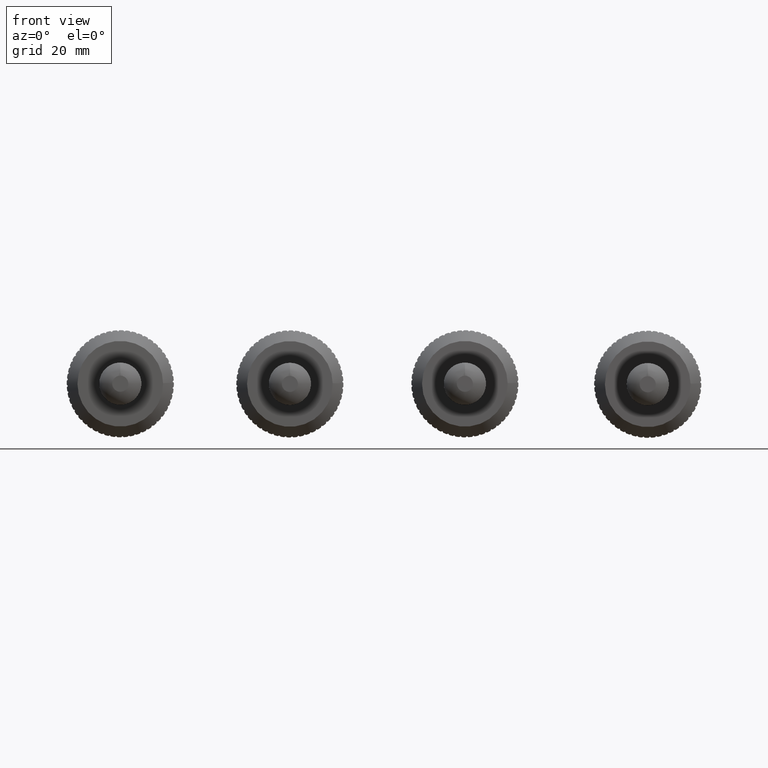
[diagram: clean part render]
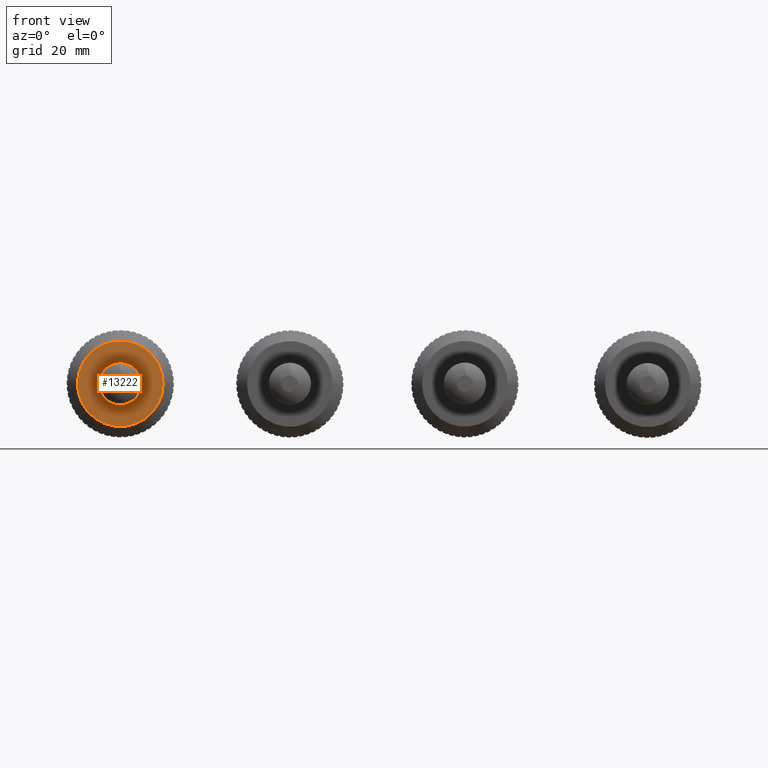
[diagram: same view with one face highlighted and labeled with its STEP entity id]
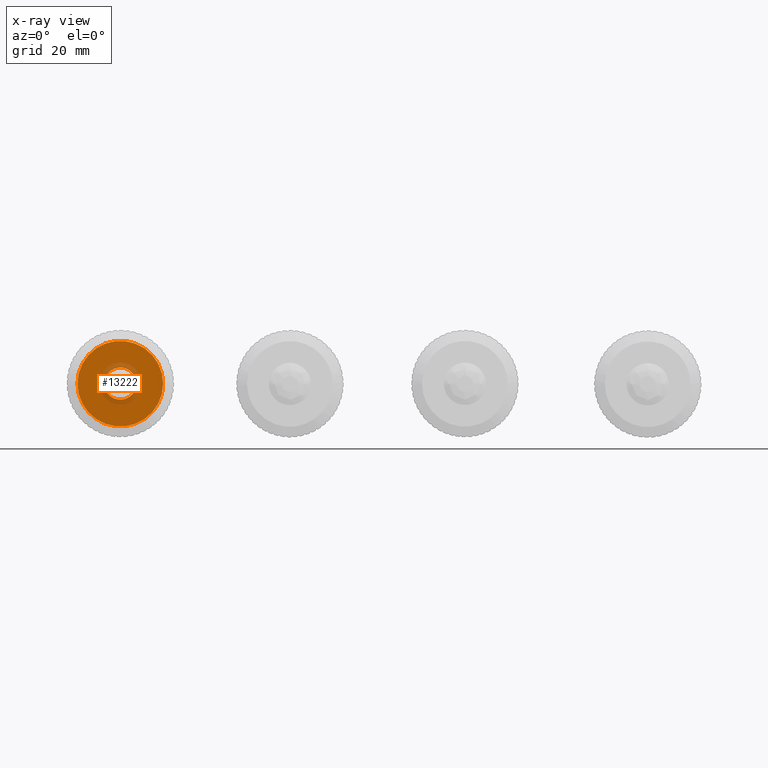
[diagram: x-ray of the same camera — body ghosted, the highlighted face saturated]
A machine part, front view. The second image highlights one B-rep face of the part: STEP entity #13222.
The next image is the same camera in x-ray: the body ghosted, the highlighted face saturated — about 12% of this face is hidden behind the body in this view.
In plain terms, the highlighted planar face has unit normal (0, -1, 0).
Its self-contained STEP definition (entity closure, byte-faithful):
#56=FACE_BOUND('',#3477,.T.);
#2292=PLANE('',#14026);
#2786=FACE_OUTER_BOUND('',#3476,.T.);
#3476=EDGE_LOOP('',(#9485));
#3477=EDGE_LOOP('',(#9486));
#4139=CIRCLE('',#14027,8.);
#4140=CIRCLE('',#14028,3.);
#5102=VERTEX_POINT('',#22800);
#5103=VERTEX_POINT('',#22802);
#6796=EDGE_CURVE('',#5102,#5102,#4139,.T.);
#6797=EDGE_CURVE('',#5103,#5103,#4140,.T.);
#9485=ORIENTED_EDGE('',*,*,#6796,.T.);
#9486=ORIENTED_EDGE('',*,*,#6797,.F.);
#13222=ADVANCED_FACE('',(#2786,#56),#2292,.T.);
#14026=AXIS2_PLACEMENT_3D('',#22799,#15615,#15616);
#14027=AXIS2_PLACEMENT_3D('',#22801,#15617,#15618);
#14028=AXIS2_PLACEMENT_3D('',#22803,#15619,#15620);
#15615=DIRECTION('center_axis',(0.,-1.,0.));
#15616=DIRECTION('ref_axis',(0.,0.,-1.));
#15617=DIRECTION('center_axis',(0.,-1.,0.));
#15618=DIRECTION('ref_axis',(1.,0.,0.));
#15619=DIRECTION('center_axis',(0.,-1.,0.));
#15620=DIRECTION('ref_axis',(1.,0.,0.));
#22799=CARTESIAN_POINT('Origin',(3.,3.67394039744206E-16,0.));
#22800=CARTESIAN_POINT('',(-8.,9.71445146547012E-16,-9.79717439317883E-16));
#22801=CARTESIAN_POINT('Origin',(0.,9.71445146547012E-16,0.));
#22802=CARTESIAN_POINT('',(-3.,5.55111512312578E-16,-3.67394039744206E-16));
#22803=CARTESIAN_POINT('Origin',(0.,5.55111512312578E-16,0.));